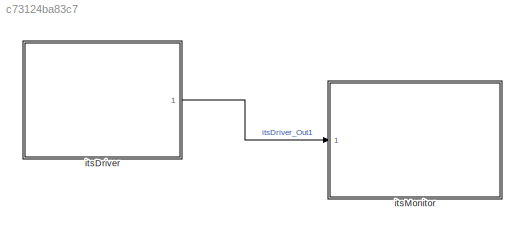
MODEL slx_c73124ba83c7
KIND model
CONFIG AbsTol = auto
CONFIG EnableMultiTasking = off
CONFIG FixedStep = auto
CONFIG MaxStep = auto
CONFIG MinStep = auto
CONFIG RelTol = 1e-3
CONFIG SampleTimeConstraint = Unconstrained
CONFIG Solver = VariableStepAuto
CONFIG SolverName = VariableStepAuto
CONFIG StartTime = 0.0
CONFIG StopTime = 30
BLOCK [ModelReference] itsDriver
  ModelNameDialog = sineGenerator
  ModelReferenceVersion = 1.4
  Ports = [0, 1]
  Variant = off
BLOCK [ModelReference] itsMonitor
  ModelNameDialog = Scope
  ModelReferenceVersion = 1.3
  Ports = [1]
  Variant = off
LINE itsDriver:1 -> itsMonitor:1
